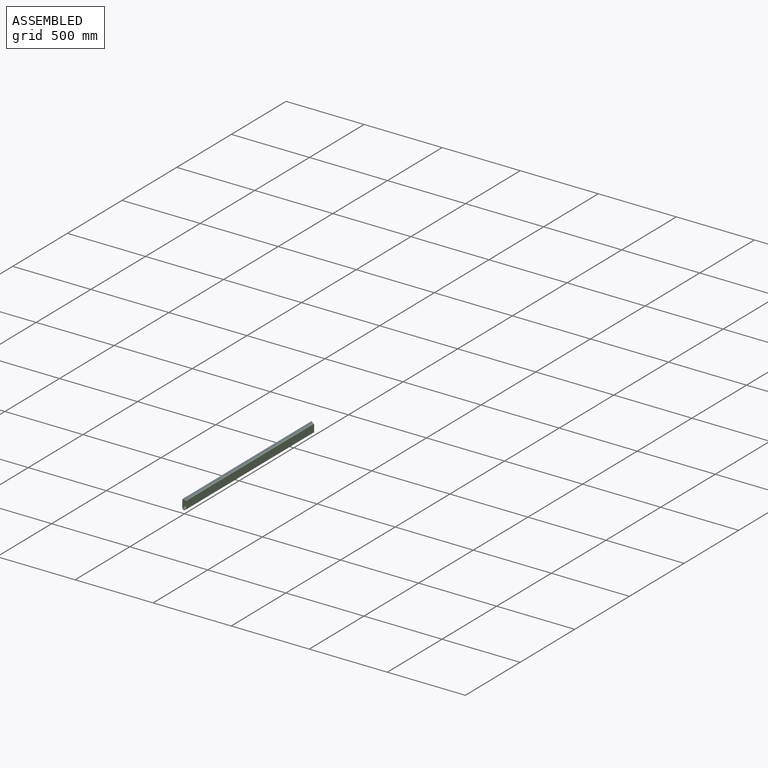
[diagram: assembled view]
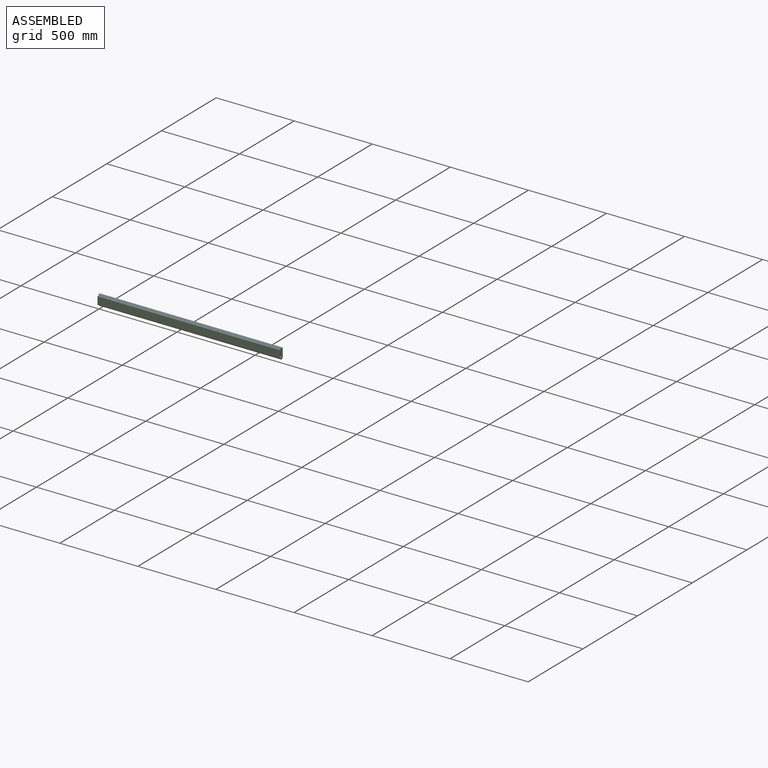
[diagram: assembled view, second angle]
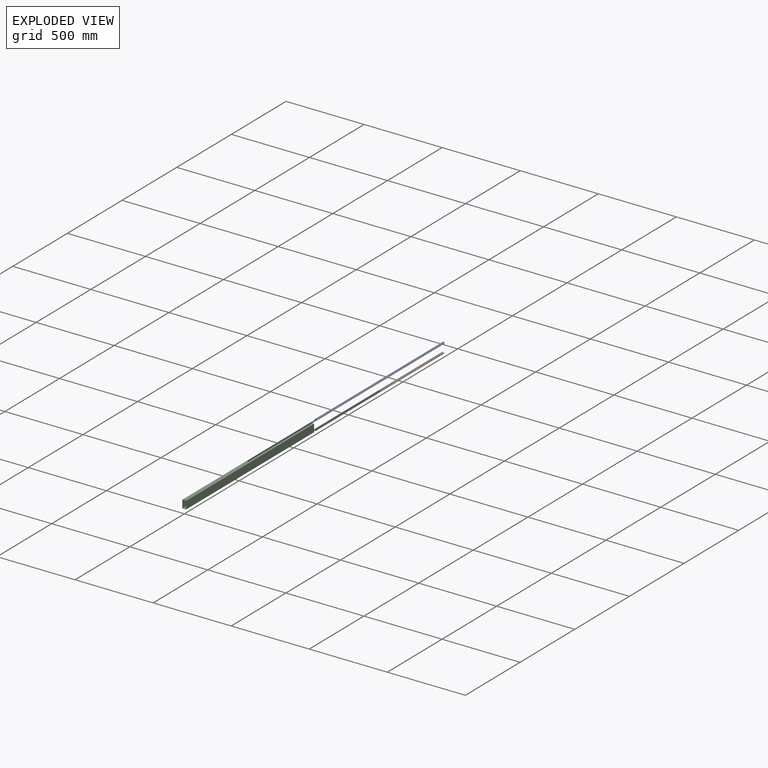
[diagram: exploded view]
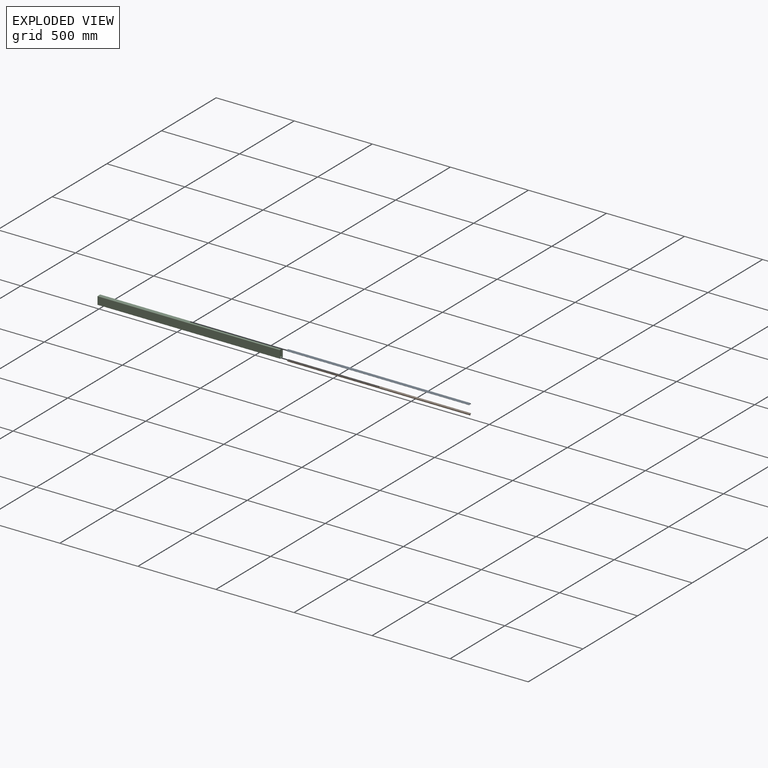
[diagram: exploded view, second angle]
ASSEMBLY  parts=3 mates=2
PART A: 10 faces, bbox 18x1168.4x10.6 mm
  f0: plane 1168.4x8.98mm, normal (-0.71,0,0.71), area 14838.7mm2, adj f1,f7,f8,f9
  f1: plane 1168.4x1.12mm, normal (-0.71,0,-0.71), area 1854.8mm2, adj f0,f2,f8,f9
  f2: cylinder r=1.59mm len=1168.4mm, axis (0,-1,0), area 2913.6mm2, adj f1,f3,f8,f9
  f3: plane 1168.4x5.61mm, normal (0.71,0,-0.71), area 9274.2mm2, adj f2,f4,f8,f9
  f4: plane 1168.4x5.61mm, normal (-0.71,0,-0.71), area 9274.2mm2, adj f3,f5,f8,f9
  f5: cylinder r=1.59mm len=1168.4mm, axis (0,-1,0), area 2913.6mm2, adj f4,f6,f8,f9
  f6: plane 1168.4x1.12mm, normal (0.71,0,-0.71), area 1854.8mm2, adj f5,f7,f8,f9
  f7: plane 1168.4x8.98mm, normal (0.71,0,0.71), area 14838.7mm2, adj f0,f6,f8,f9
  f8: plane 17.96x10.57mm, normal (0,1,0), area 69.5mm2, adj f0,f1,f2,f3,f4,f5,f6,f7
  f9: plane 17.96x10.57mm, normal (0,-1,0), area 69.5mm2, adj f0,f1,f2,f3,f4,f5,f6,f7
PART B: same geometry as A
PART C: 14 faces, bbox 25.4x1169.5x50.8 mm
  f0: plane 50.8x25.4mm, normal (0,1,0), area 359.1mm2, adj f2,f3,f4,f5,f6,f7,f8,f9
  f1: plane 50.8x25.4mm, normal (0.04,-1,0), area 359.4mm2, adj f2,f3,f4,f5,f6,f7,f8,f9
  f2: plane 1169.4x22.23mm, normal (0,0,-1), area 25979.5mm2, adj f0,f1,f3,f9
  f3: cylinder r=1.59mm len=1168.47mm, axis (0,-1,0), area 2913.6mm2, adj f0,f1,f2,f4
  f4: plane 1168.4x47.63mm, normal (1,0,0), area 55645.1mm2, adj f0,f1,f3,f5
  f5: cylinder r=1.59mm len=1168.47mm, axis (0,-1,0), area 2913.6mm2, adj f0,f1,f4,f6
  f6: plane 1169.4x22.23mm, normal (0,0,1), area 25979.5mm2, adj f0,f1,f5,f7
  f7: cylinder r=1.59mm len=1169.46mm, axis (0,-1,0), area 2916.2mm2, adj f0,f1,f6,f8
  f8: plane 1169.46x47.63mm, normal (-1,0,0), area 55695.8mm2, adj f0,f1,f7,f9
  f9: cylinder r=1.59mm len=1169.46mm, axis (0,-1,0), area 2916.2mm2, adj f0,f1,f2,f8
  f10: plane 1169.36x20.32mm, normal (0,0,1), area 23752.7mm2, adj f0,f1,f11,f13
  f11: plane 1168.51x45.72mm, normal (-1,0,0), area 53424.1mm2, adj f0,f1,f10,f12
  f12: plane 1169.36x20.32mm, normal (0,0,-1), area 23752.7mm2, adj f0,f1,f11,f13
  f13: plane 1169.36x45.72mm, normal (1,0,0), area 53463.1mm2, adj f0,f1,f10,f12
PLACE A t=(0.54,0,0.15)mm
PLACE B rot(axis=(0,1,0),180deg) t=(-6.89,0,-0.15)mm
PLACE C at identity fixed
MATE fastened A.f8 <-> C.f0  axis (0,1,0) through (-3.18,1168.4,36.12)mm
MATE fastened C.f0 <-> B.f8  axis (0,1,0) through (0,1168.4,-25.4)mm
